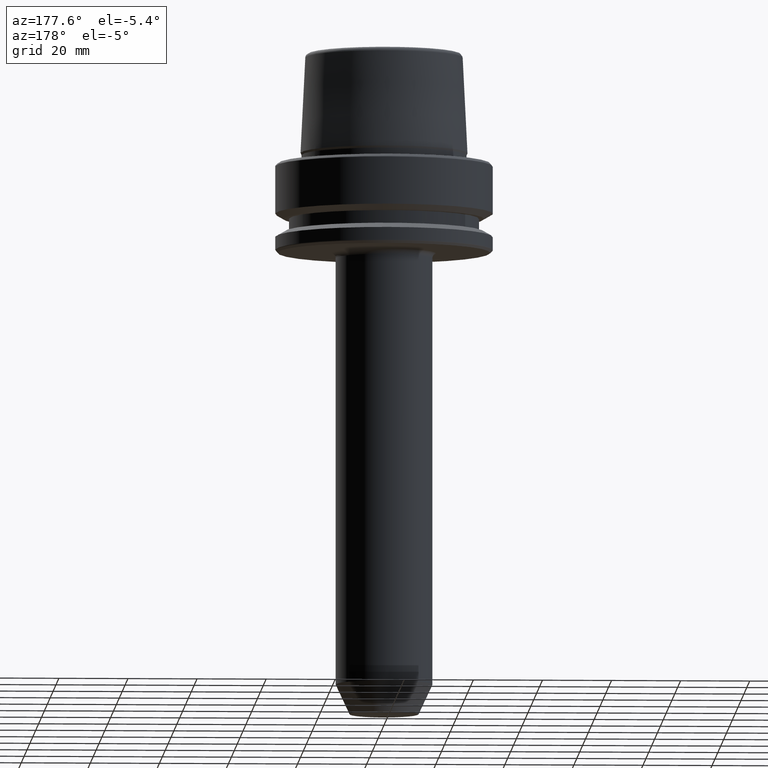
[diagram: clean part render]
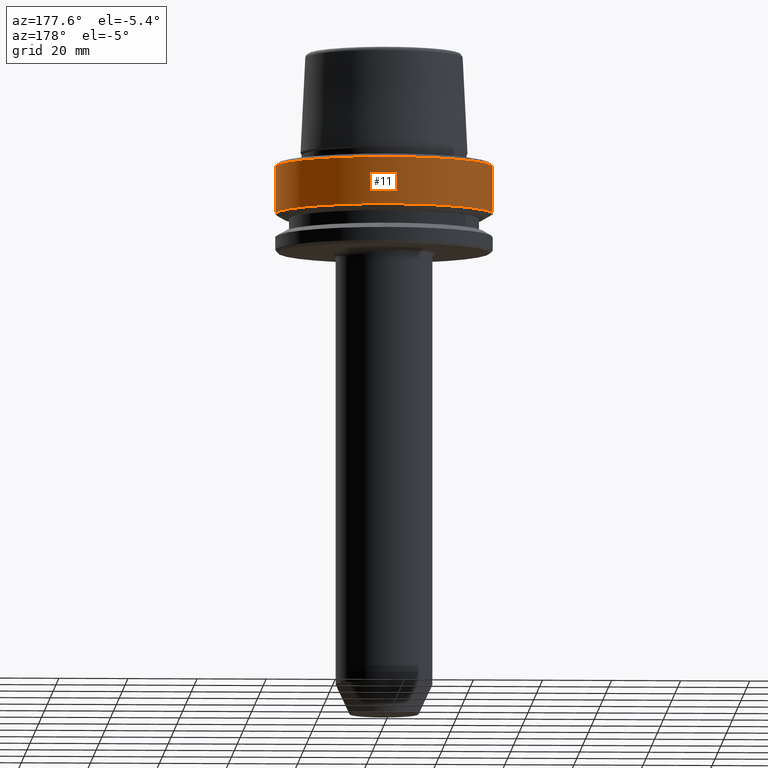
[diagram: same view with one face highlighted and labeled with its STEP entity id]
A machine part, auxiliary view. The second image highlights one B-rep face of the part: STEP entity #11.
In plain terms, the highlighted cylindrical surface (partial cylindrical patch) has radius 31.5 mm, axis along (-0, -0, 1).
Its self-contained STEP definition (entity closure, byte-faithful):
#3 = AXIS2_PLACEMENT_3D ( 'NONE', #167, #1201, #744 ) ;
#11 = ADVANCED_FACE ( 'NONE', ( #990 ), #122, .T. ) ;
#67 = CARTESIAN_POINT ( 'NONE',  ( -31.50000000000000000, 3.857637417314162700E-015, 78.96908074195309300 ) ) ;
#78 = DIRECTION ( 'NONE',  ( 1.000000000000000000, 0.0000000000000000000, 0.0000000000000000000 ) ) ;
#94 = CIRCLE ( 'NONE', #626, 31.50000000000000700 ) ;
#122 = CYLINDRICAL_SURFACE ( 'NONE', #3, 31.50000000000000000 ) ;
#128 = VERTEX_POINT ( 'NONE', #829 ) ;
#154 = EDGE_LOOP ( 'NONE', ( #1204, #393, #919, #1157 ) ) ;
#167 = CARTESIAN_POINT ( 'NONE',  ( 0.0000000000000000000, 0.0000000000000000000, 78.96908074195309300 ) ) ;
#244 = DIRECTION ( 'NONE',  ( -0.0000000000000000000, -0.0000000000000000000, 1.000000000000000000 ) ) ;
#276 = CARTESIAN_POINT ( 'NONE',  ( 31.50000000000000000, 0.0000000000000000000, -14.62250092524070100 ) ) ;
#365 = CARTESIAN_POINT ( 'NONE',  ( 0.0000000000000000000, 0.0000000000000000000, -0.9656854249492363700 ) ) ;
#393 = ORIENTED_EDGE ( 'NONE', *, *, #973, .T. ) ;
#440 = VERTEX_POINT ( 'NONE', #276 ) ;
#457 = CARTESIAN_POINT ( 'NONE',  ( 31.50000000000000000, 0.0000000000000000000, 78.96908074195309300 ) ) ;
#553 = CARTESIAN_POINT ( 'NONE',  ( 0.0000000000000000000, 0.0000000000000000000, -14.62250092524070100 ) ) ;
#584 = DIRECTION ( 'NONE',  ( -0.0000000000000000000, -0.0000000000000000000, 1.000000000000000000 ) ) ;
#600 = VERTEX_POINT ( 'NONE', #659 ) ;
#626 = AXIS2_PLACEMENT_3D ( 'NONE', #365, #1034, #1133 ) ;
#629 = CARTESIAN_POINT ( 'NONE',  ( -31.50000000000000700, 3.857637417314163500E-015, -0.9656854249492363700 ) ) ;
#659 = CARTESIAN_POINT ( 'NONE',  ( 31.50000000000000700, 0.0000000000000000000, -0.9656854249492363700 ) ) ;
#670 = VECTOR ( 'NONE', #584, 1000.000000000000000 ) ;
#744 = DIRECTION ( 'NONE',  ( 1.000000000000000000, 0.0000000000000000000, 0.0000000000000000000 ) ) ;
#829 = CARTESIAN_POINT ( 'NONE',  ( -31.50000000000000000, 3.857637417314162700E-015, -14.62250092524070100 ) ) ;
#843 = AXIS2_PLACEMENT_3D ( 'NONE', #553, #244, #78 ) ;
#845 = CIRCLE ( 'NONE', #843, 31.50000000000000000 ) ;
#874 = LINE ( 'NONE', #457, #670 ) ;
#919 = ORIENTED_EDGE ( 'NONE', *, *, #1170, .F. ) ;
#973 = EDGE_CURVE ( 'NONE', #128, #992, #1122, .T. ) ;
#982 = EDGE_CURVE ( 'NONE', #440, #600, #874, .T. ) ;
#988 = EDGE_CURVE ( 'NONE', #440, #128, #845, .T. ) ;
#990 = FACE_OUTER_BOUND ( 'NONE', #154, .T. ) ;
#992 = VERTEX_POINT ( 'NONE', #629 ) ;
#1034 = DIRECTION ( 'NONE',  ( -0.0000000000000000000, -0.0000000000000000000, 1.000000000000000000 ) ) ;
#1122 = LINE ( 'NONE', #67, #1246 ) ;
#1126 = DIRECTION ( 'NONE',  ( -0.0000000000000000000, -0.0000000000000000000, 1.000000000000000000 ) ) ;
#1133 = DIRECTION ( 'NONE',  ( 1.000000000000000000, 0.0000000000000000000, 0.0000000000000000000 ) ) ;
#1157 = ORIENTED_EDGE ( 'NONE', *, *, #982, .F. ) ;
#1170 = EDGE_CURVE ( 'NONE', #600, #992, #94, .T. ) ;
#1201 = DIRECTION ( 'NONE',  ( -0.0000000000000000000, -0.0000000000000000000, 1.000000000000000000 ) ) ;
#1204 = ORIENTED_EDGE ( 'NONE', *, *, #988, .T. ) ;
#1246 = VECTOR ( 'NONE', #1126, 1000.000000000000000 ) ;